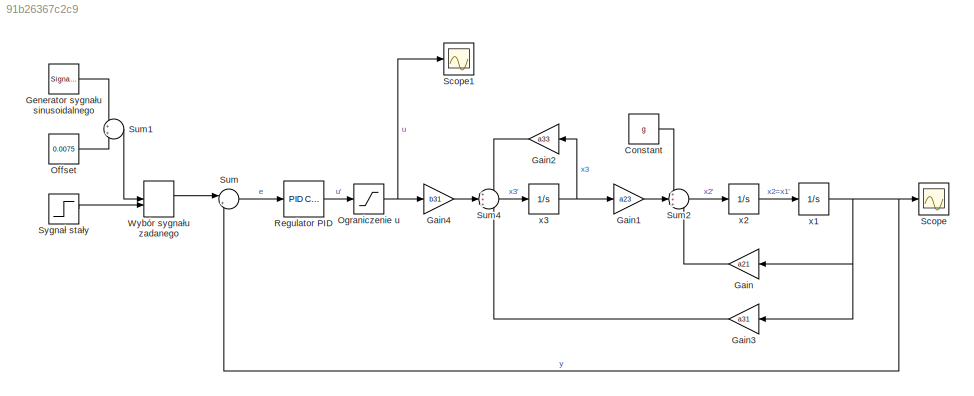
MODEL slx_91b26367c2c9
KIND model
CONFIG AbsTol = auto
CONFIG EnableMultiTasking = off
CONFIG FixedStep = auto
CONFIG MaxStep = auto
CONFIG MinStep = auto
CONFIG RelTol = 1e-3
CONFIG SampleTimeConstraint = Unconstrained
CONFIG SolverName = VariableStepAuto
CONFIG StartTime = 0.0
CONFIG StopTime = 10.0
BLOCK [Constant] Constant
  Value = g
BLOCK [Gain] Gain
  Gain = a21
  NameLocation = top
BLOCK [Gain] Gain1
  Gain = a23
BLOCK [Gain] Gain2
  Gain = a33
  NameLocation = top
BLOCK [Gain] Gain3
  Gain = a31
  NameLocation = top
BLOCK [Gain] Gain4
  Gain = b31
BLOCK [SignalGenerator] Generator sygnału sinusoidalnego
  Amplitude = 0.005
  Frequency = 4
  Ports = [0, 1]
  Units = rad/sec
BLOCK [Constant] Offset
  Value = 0.0075
BLOCK [Saturate] Ograniczenie u
  LowerLimit = 0
  UpperLimit = 1
BLOCK [Reference] Regulator PID  REF=slpidlib/PID Controller
  Ports = [1, 1]
  SourceBlock = slpidlib/PID Controller
  SourceProductBaseCode = SL
  SourceType = PID 1dof
BLOCK [Scope] Scope
  Floating = off
  NumInputPorts = 1
  Ports = [1]
  ScopeSpecificationString = Simulink.scopes.TimeScopeBlockCfg('CurrentConfiguration', extmgr.ConfigurationSet(extmgr.Configuration('Core','General UI',true),extmgr.Configuration('Core','Source UI',true),extmgr.Configuration('Sources','WiredSimulink',true),extmgr.Configuration('Visuals','Time Domain',true,'SerializedDisplays',{struct('MinYLimReal','0.00101','MaxYLimReal','0.01462','YLabelReal','','MinYLimMag','0.00101','MaxYL...<+1392ch>
BLOCK [Scope] Scope1
  Floating = off
  NumInputPorts = 1
  Ports = [1]
  ScopeSpecificationString = Simulink.scopes.TimeScopeBlockCfg('CurrentConfiguration', extmgr.ConfigurationSet(extmgr.Configuration('Core','General UI',true),extmgr.Configuration('Core','Source UI',true),extmgr.Configuration('Sources','WiredSimulink',true,'DataLoggingVariableName','ScopeData1'),extmgr.Configuration('Visuals','Time Domain',true,'SerializedDisplays',{struct('MinYLimReal','-0.125','MaxYLimReal','1.125','YLabelRe...<+1421ch>
BLOCK [Sum] Sum
  Inputs = |+-
  Ports = [2, 1]
BLOCK [Sum] Sum1
  Ports = [2, 1]
BLOCK [Sum] Sum2
  Inputs = +++
  Ports = [3, 1]
BLOCK [Sum] Sum4
  Inputs = +++
  Ports = [3, 1]
BLOCK [Step] Sygnał stały
  After = 0.008
  SampleTime = 0
  Time = 0
BLOCK [ManualSwitch] Wybór sygnału zadanego
  CurrentSetting = 0
BLOCK [Integrator] x1
  InitialCondition = xd
  LimitOutput = on
  LowerSaturationLimit = 0
  Ports = [1, 1]
  UpperSaturationLimit = xd
BLOCK [Integrator] x2
  Ports = [1, 1]
BLOCK [Integrator] x3
  Ports = [1, 1]
LINE Constant:1 -> Sum2:1
LINE Gain1:1 -> Sum2:2
LINE Gain2:1 -> Sum4:1
LINE Gain3:1 -> Sum4:3
LINE Gain4:1 -> Sum4:2
LINE Gain:1 -> Sum2:3
LINE Generator sygnału sinusoidalnego:1 -> Sum1:1
LINE Offset:1 -> Sum1:2
NET Ograniczenie u:1 -> Gain4:1, Scope1:1
LINE Regulator PID:1 -> Ograniczenie u:1
LINE Sum1:1 -> Wybór sygnału zadanego:1
LINE Sum2:1 -> x2:1
LINE Sum4:1 -> x3:1
LINE Sum:1 -> Regulator PID:1
LINE Sygnał stały:1 -> Wybór sygnału zadanego:2
LINE Wybór sygnału zadanego:1 -> Sum:1
NET x1:1 -> Gain3:1, Gain:1, Scope:1, Sum:2
LINE x2:1 -> x1:1
NET x3:1 -> Gain1:1, Gain2:1
note: NET lines group one-source signal fan-out (src -> all destinations, sorted); 1:1 wires keep LINE
